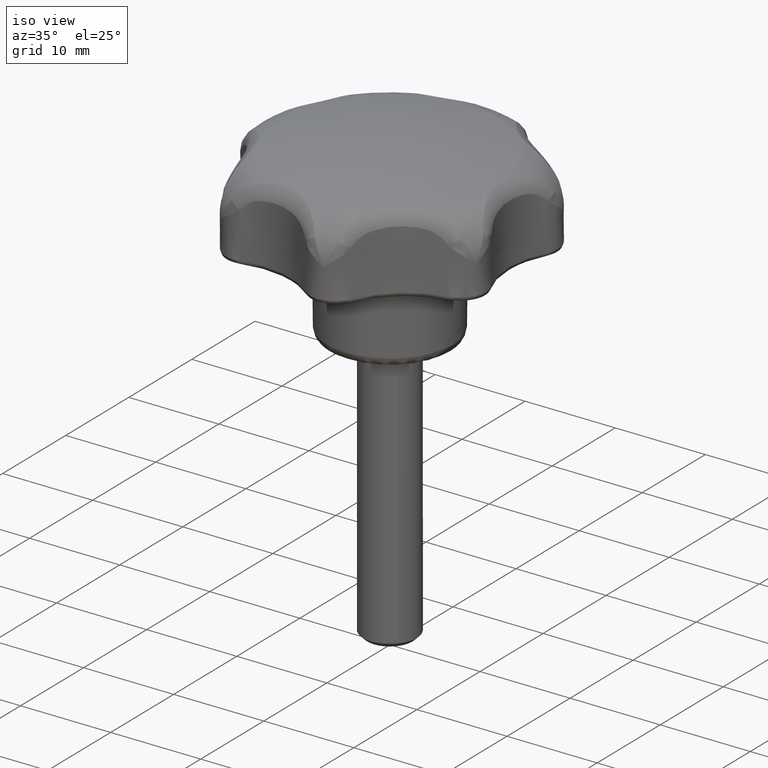
[diagram: clean part render]
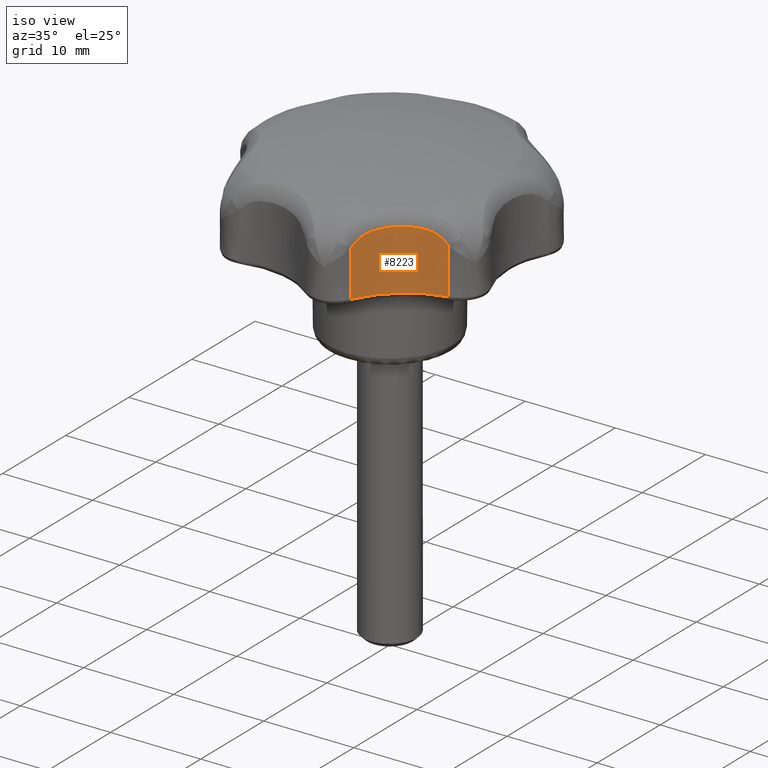
[diagram: same view with one face highlighted and labeled with its STEP entity id]
A machine part, iso view. The second image highlights one B-rep face of the part: STEP entity #8223.
In plain terms, the highlighted face is a freeform B-spline surface patch.
Its self-contained STEP definition (entity closure, byte-faithful):
#3244=CARTESIAN_POINT('',(5.478050660799160,-14.045681209060820,10.500000000000000));
#3245=VERTEX_POINT('',#3244);
#3374=CARTESIAN_POINT('',(12.474545264131759,-8.466162524396150,10.500000000000000));
#3375=VERTEX_POINT('',#3374);
#3388=CARTESIAN_POINT('',(5.478050660799160,-14.045681209060820,10.500000000000000));
#3389=CARTESIAN_POINT('',(5.681098810648273,-13.607178271751360,10.500000000000011));
#3390=CARTESIAN_POINT('',(6.162683602272132,-12.738509796967159,10.499999999999989));
#3391=CARTESIAN_POINT('',(7.151323786926108,-11.450709055609471,10.499999999999980));
#3392=CARTESIAN_POINT('',(8.381504550946202,-10.314561959722219,10.500000000000080));
#3393=CARTESIAN_POINT('',(9.747255784981993,-9.435885734283383,10.499999999999950));
#3394=CARTESIAN_POINT('',(11.094342719614581,-8.829289963727595,10.500000000000011));
#3395=CARTESIAN_POINT('',(12.001852963467099,-8.566540836893543,10.499999999999980));
#3396=CARTESIAN_POINT('',(12.474545264131759,-8.466162524396150,10.500000000000000));
#3397=B_SPLINE_CURVE_WITH_KNOTS('',3,(#3388,#3389,#3390,#3391,#3392,#3393,#3394,#3395,#3396),.UNSPECIFIED.,.F.,.U.,(4,1,1,1,1,1,4),(9.545490E-009,1.449697816001088,2.971889772453105,4.856492139295524,6.451172152991571,7.828396308489065,9.278094241753848),.UNSPECIFIED.);
#3398=EDGE_CURVE('',#3245,#3375,#3397,.T.);
#7811=CARTESIAN_POINT('',(12.474545264131759,-8.466162524396150,15.546571694773050));
#7812=VERTEX_POINT('',#7811);
#7824=CARTESIAN_POINT('',(5.478050660799160,-14.045681209060820,15.546571506372500));
#7825=VERTEX_POINT('',#7824);
#7836=CARTESIAN_POINT('',(12.474545264131759,-8.466162524396150,15.546571694773050));
#7837=CARTESIAN_POINT('',(12.356155748876620,-8.491309640143539,15.726395433643299));
#7838=CARTESIAN_POINT('',(12.221800842712661,-8.522068031033058,15.889923030811900));
#7839=CARTESIAN_POINT('',(11.998748565897539,-8.579147888114429,16.112450716955319));
#7840=CARTESIAN_POINT('',(11.920791955437830,-8.600007130539421,16.182812569637779));
#7841=CARTESIAN_POINT('',(11.798634914815500,-8.634438257548611,16.282716374325279));
#7842=CARTESIAN_POINT('',(11.756931523729740,-8.646473480110201,16.315159422344070));
#7843=CARTESIAN_POINT('',(11.672410313646971,-8.671485083204411,16.377735313156329));
#7844=CARTESIAN_POINT('',(11.629651702221411,-8.684442175493444,16.407834930257629));
#7845=CARTESIAN_POINT('',(11.413554526502139,-8.751552005917333,16.552686849220589));
#7846=CARTESIAN_POINT('',(11.233336986009361,-8.812682753943923,16.650558271315742));
#7847=CARTESIAN_POINT('',(11.001436825894480,-8.899453144872684,16.754354981208429));
#7848=CARTESIAN_POINT('',(10.954723586706431,-8.917324707442944,16.774184157984099));
#7849=CARTESIAN_POINT('',(10.860688633357009,-8.954127356061397,16.812072141091448));
#7850=CARTESIAN_POINT('',(10.813320642948520,-8.973079036792846,16.830144003360878));
#7851=CARTESIAN_POINT('',(10.671501351725500,-9.031093694207836,16.881456001787729));
#7852=CARTESIAN_POINT('',(10.576980919561040,-9.071451571979845,16.911950716163549));
#7853=CARTESIAN_POINT('',(10.293885337576020,-9.197577919613339,16.994042771757009));
#7854=CARTESIAN_POINT('',(10.105789751558660,-9.288398584762941,17.036312205824181));
#7855=CARTESIAN_POINT('',(9.732510405458932,-9.483551582125937,17.103315654197271));
#7856=CARTESIAN_POINT('',(9.547323037160060,-9.587880542533220,17.128040936645199));
#7857=CARTESIAN_POINT('',(9.272639867218834,-9.754576119863632,17.155979188435062));
#7858=CARTESIAN_POINT('',(9.181959420889424,-9.811624255984029,17.163712896323219));
#7859=CARTESIAN_POINT('',(9.003043905030783,-9.928219008061859,17.176538555131341));
#7860=CARTESIAN_POINT('',(8.914696224275662,-9.987833676037008,17.181641743631872));
#7861=CARTESIAN_POINT('',(8.652943555550042,-10.170593499033320,17.193642230969200));
#7862=CARTESIAN_POINT('',(8.482824776235978,-10.297651004955870,17.197310483036159));
#7863=CARTESIAN_POINT('',(8.151246257421347,-10.562097730495310,17.197300978776351));
#7864=CARTESIAN_POINT('',(7.989786824057451,-10.699487289879880,17.193621663059599));
#7865=CARTESIAN_POINT('',(7.675550749585299,-10.984602531194341,17.177677392533528));
#7866=CARTESIAN_POINT('',(7.522774153058417,-11.132328356504480,17.165416995503019));
#7867=CARTESIAN_POINT('',(7.226051815364029,-11.438220308485560,17.128491343558519));
#7868=CARTESIAN_POINT('',(7.081607294375099,-11.597049087641279,17.103645180844762));
#7869=CARTESIAN_POINT('',(6.806900535048960,-11.919084161332240,17.036386325675320));
#7870=CARTESIAN_POINT('',(6.676116665529350,-12.082767741317900,16.993959860400832));
#7871=CARTESIAN_POINT('',(6.490013492986619,-12.330922375301750,16.911760615677991));
#7872=CARTESIAN_POINT('',(6.429658633430507,-12.414075253771021,16.881253198792521));
#7873=CARTESIAN_POINT('',(6.312353451644304,-12.580967775222479,16.812915335608199));
#7874=CARTESIAN_POINT('',(6.255316314797721,-12.664862346745689,16.774974515770278));
#7875=CARTESIAN_POINT('',(6.091976764456363,-12.912863843473829,16.650459441366731));
#7876=CARTESIAN_POINT('',(5.992554025878080,-13.074533293860370,16.552787007141738));
#7877=CARTESIAN_POINT('',(5.856947136990523,-13.308315156685440,16.379930028189200));
#7878=CARTESIAN_POINT('',(5.813999165887885,-13.384784508403129,16.317913312090280));
#7879=CARTESIAN_POINT('',(5.732516100155595,-13.534172551015081,16.184191488169478));
#7880=CARTESIAN_POINT('',(5.694575557492851,-13.605999268222760,16.113441781080660));
#7881=CARTESIAN_POINT('',(5.588837111718241,-13.811606066781151,15.890134543485230));
#7882=CARTESIAN_POINT('',(5.528881011033560,-13.935920121680610,15.726289617220960));
#7883=CARTESIAN_POINT('',(5.478050660799160,-14.045681209060820,15.546571506372500));
#7884=B_SPLINE_CURVE_WITH_KNOTS('',3,(#7836,#7837,#7838,#7839,#7840,#7841,#7842,#7843,#7844,#7845,#7846,#7847,#7848,#7849,#7850,#7851,#7852,#7853,#7854,#7855,#7856,#7857,#7858,#7859,#7860,#7861,#7862,#7863,#7864,#7865,#7866,#7867,#7868,#7869,#7870,#7871,#7872,#7873,#7874,#7875,#7876,#7877,#7878,#7879,#7880,#7881,#7882,#7883),.UNSPECIFIED.,.F.,.U.,(4,2,2,2,2,2,2,2,2,2,2,2,2,2,2,2,2,2,2,2,2,2,2,4),(9.885650E-009,0.062499999999998,0.093749999999997,0.109374999999996,0.124999999999995,0.187499999999992,0.203124999999992,0.218749999999992,0.249999999999992,0.312499999999992,0.374999999999992,0.406249999999992,0.437499999999992,0.499999999999993,0.562499999999993,0.624999999999993,0.687499999999994,0.749999999999994,0.781249999999995,0.812499999999995,0.874999999999996,0.906249999999997,0.937499999999998,0.999999952605282),.UNSPECIFIED.);
#7885=EDGE_CURVE('',#7812,#7825,#7884,.T.);
#8195=CARTESIAN_POINT('',(12.875756685782470,-8.389472391932591,17.364738378902430));
#8196=CARTESIAN_POINT('',(12.875756685782470,-8.389472391932591,10.328381540527440));
#8197=CARTESIAN_POINT('',(7.404471359316703,-9.319896038843899,17.364738378902430));
#8198=CARTESIAN_POINT('',(7.404471359316703,-9.319896038843899,10.328381540527438));
#8199=CARTESIAN_POINT('',(5.299470711342824,-14.455032216041229,17.364738378902441));
#8200=CARTESIAN_POINT('',(5.299470711342824,-14.455032216041229,10.328381540527442));
#8208=(BOUNDED_SURFACE()B_SPLINE_SURFACE(1,2,((#8195,#8197,#8199),(#8196,#8198,#8200)),.UNSPECIFIED.,.F.,.F.,.U.)B_SPLINE_SURFACE_WITH_KNOTS((2,2),(3,3),(0.0,7.036356838374998),(0.0,10.355653957981930),.UNSPECIFIED.)GEOMETRIC_REPRESENTATION_ITEM()RATIONAL_B_SPLINE_SURFACE(((1.0,0.870543754734984,0.991268064761978),(1.0,0.870543754734984,0.991268064761978)))REPRESENTATION_ITEM('')SURFACE());
#8209=CARTESIAN_POINT('',(5.478050660799160,-14.045681209060820,15.546571506372500));
#8210=CARTESIAN_POINT('',(5.478050660799160,-14.045681209060820,10.500000000000000));
#8211=QUASI_UNIFORM_CURVE('',1,(#8209,#8210),.UNSPECIFIED.,.F.,.U.);
#8212=EDGE_CURVE('',#7825,#3245,#8211,.T.);
#8213=ORIENTED_EDGE('',*,*,#8212,.T.);
#8214=ORIENTED_EDGE('',*,*,#3398,.T.);
#8215=CARTESIAN_POINT('',(12.474545264131759,-8.466162524396150,15.546571694773050));
#8216=CARTESIAN_POINT('',(12.474545264131759,-8.466162524396150,10.500000000000000));
#8217=QUASI_UNIFORM_CURVE('',1,(#8215,#8216),.UNSPECIFIED.,.F.,.U.);
#8218=EDGE_CURVE('',#7812,#3375,#8217,.T.);
#8219=ORIENTED_EDGE('',*,*,#8218,.F.);
#8220=ORIENTED_EDGE('',*,*,#7885,.T.);
#8221=EDGE_LOOP('',(#8213,#8214,#8219,#8220));
#8222=FACE_OUTER_BOUND('',#8221,.T.);
#8223=ADVANCED_FACE('',(#8222),#8208,.F.);